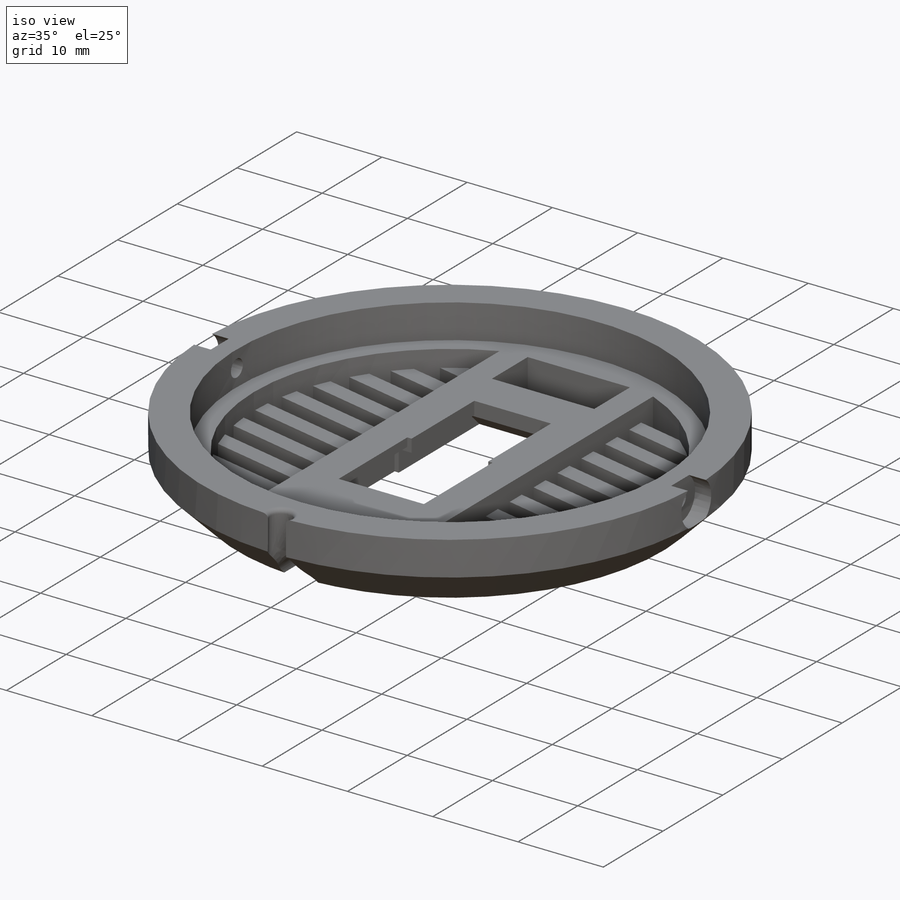
[diagram: iso view]
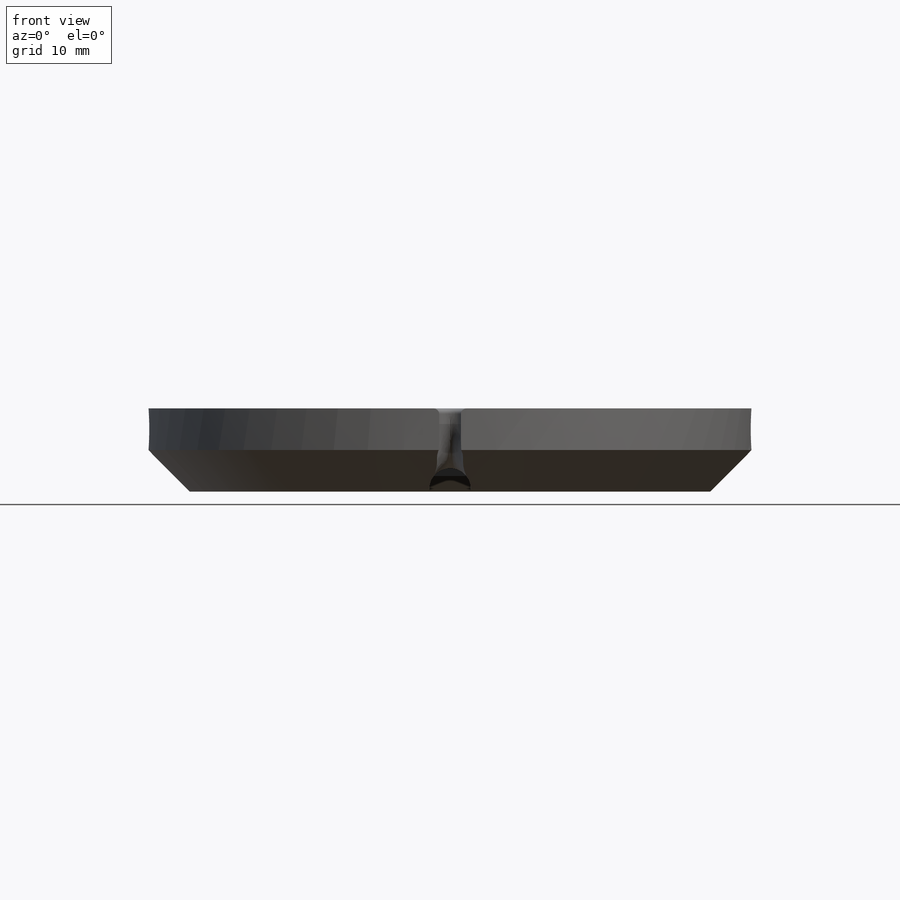
[diagram: front view]
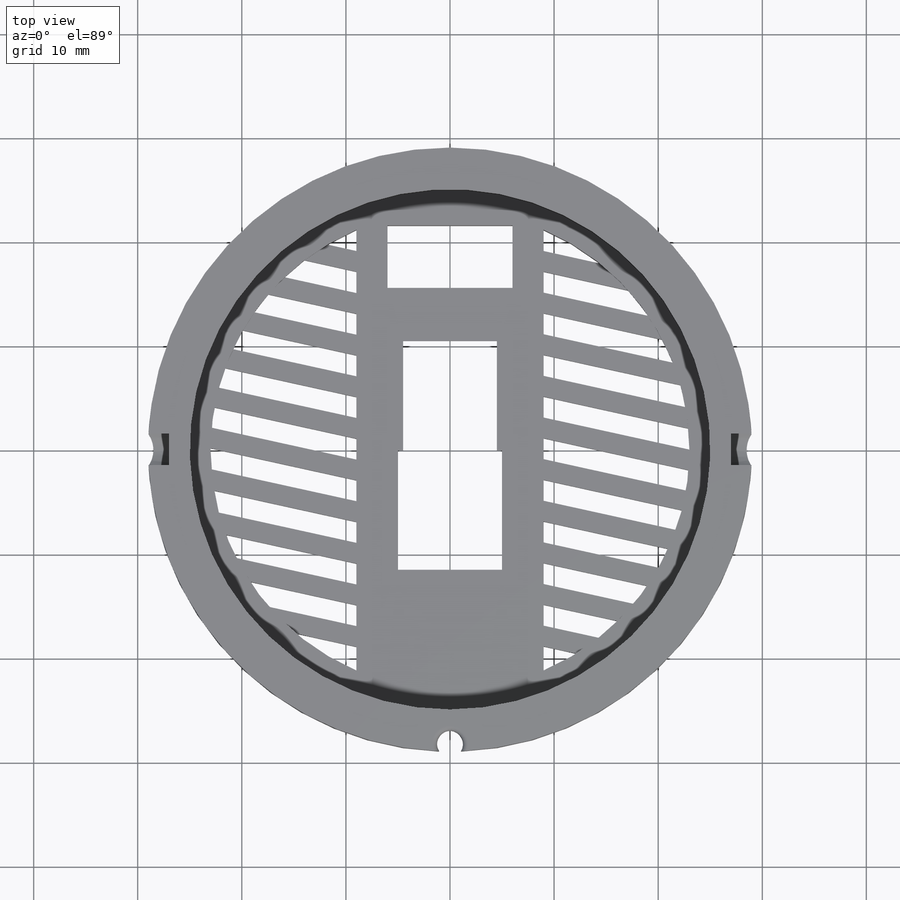
[diagram: top view]
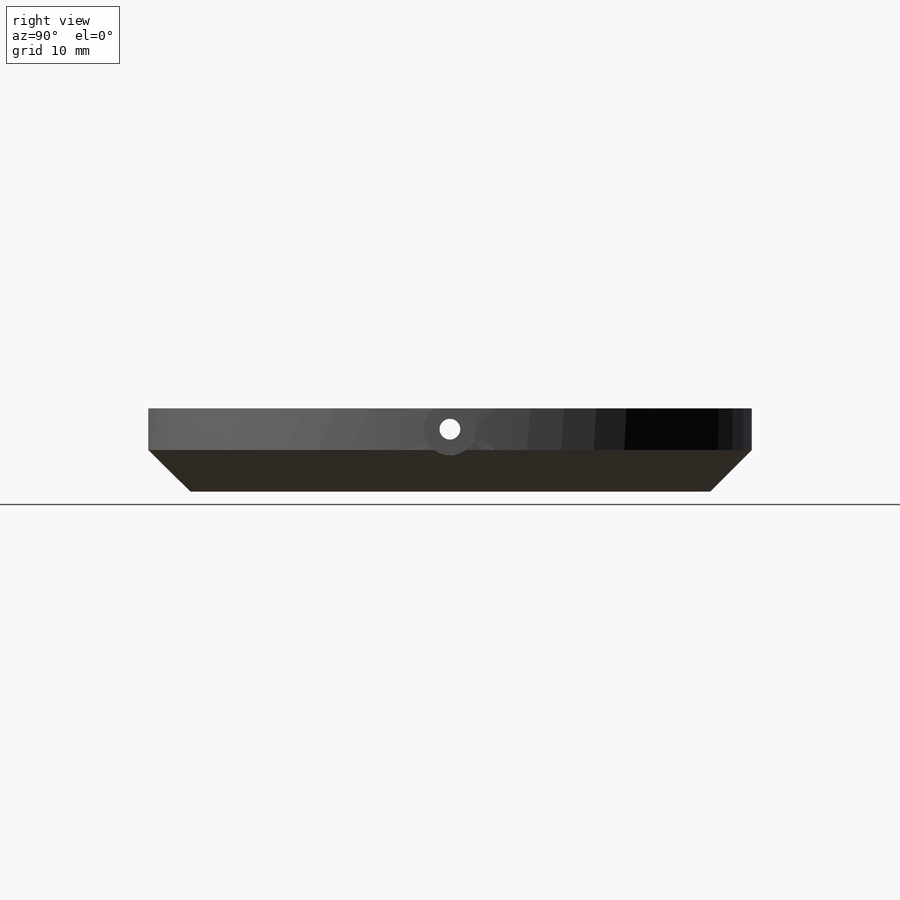
[diagram: right view]
SOLIDWORKS PART (.sldprt)
format: sldprt  version: not decoded by parser v0  size: 561,152 bytes
history: native  units: mm
features: sketch x15, cut_extrude x13, plane x5, extrude x2, chamfer x2, fillet x2, material x1 (+8 scaffold rows collapsed)
feature tree (48):
  scaffold x8  (default folders/planes/origin — collapsed)
  material  "Matériau <non spécifié>"
  plane  "Plan de face"
  plane  "Plan de dessus"
  plane  "Plan de droite"
  sketch  "Esquisse1"  dims[D1=~22.264519mm]
  extrude  "Boss.-Extru.1"  Depth=4mm
  sketch  "Esquisse2"  dims[D1=~21.592402mm]
  extrude  "Boss.-Extru.2"  Depth=4mm
  chamfer  "Chanfrein1"  Distance=4mm Angle=45deg
  sketch  "Esquisse3"  dims[D1=~26.176193mm]
  cut_extrude  "Enlèv. mat.-Extru.1"  Depth=4mm
  sketch  "Esquisse5"  dims[D1=~1.170946mm]
  cut_extrude  "Enlèv. mat.-Extru.2"  Depth=300mm
  plane  "Plan1"  Offset=29mm
  sketch  "Esquisse6"  dims[D1=~2.279003mm]
  cut_extrude  "Enlèv. mat.-Extru.3"  Depth=2mm
  plane  "Plan2"  Offset=29mm
  sketch  "Esquisse7"  dims[D1=~2.331695mm]
  cut_extrude  "Enlèv. mat.-Extru.4"  Depth=2mm
  sketch  "Esquisse8"  dims[D1=0.7mm]
  cut_extrude  "Enlèv. mat.-Extru.5"  [1 undecoded]
  fillet  "Congé1"  Radius=0.5mm
  sketch  "Esquisse9"  dims[D1=13.0mm]
  cut_extrude  "Enlèv. mat.-Extru.6"  Depth=2.5mm
  sketch  "Esquisse10"
  cut_extrude  "Enlèv. mat.-Extru.7"  Depth=0.5mm
  sketch  "Esquisse11"  dims[D1=1.5mm]
  cut_extrude  "Enlèv. mat.-Extru.8"  [1 undecoded]
  sketch  "Esquisse12"  dims[D1=1.5mm]
  cut_extrude  "Enlèv. mat.-Extru.9"  [1 undecoded]
  sketch  "Esquisse14"  dims[D1=2.75mm]
  cut_extrude  "Enlèv. mat.-Extru.10"  [1 undecoded]
  fillet  "Congé2"  Radius=5mm
  chamfer  "Chanfrein3"  Distance=1.5mm Angle=45deg
  sketch  "Esquisse17"  dims[D1=6.0mm]
  cut_extrude  "Enlèv. mat.-Extru.13"  [1 undecoded]
  sketch  "Esquisse18"  dims[D1=23.0mm]
  cut_extrude  "Enlèv. mat.-Extru.15"  Depth=2mm
  sketch  "Esquisse20"  dims[D1=2.0mm]
  cut_extrude  "Enlèv. mat.-Extru.20"  [1 undecoded]
decode coverage: 27 of 34 modeling features carry decoded parameters
note: ~ marks probable driven/reference dimensions
note: 6 parameter values undecoded
summary: no parameter record found for 6 features
note: suppression state not decoded; provenance and decode notes live in map.json
